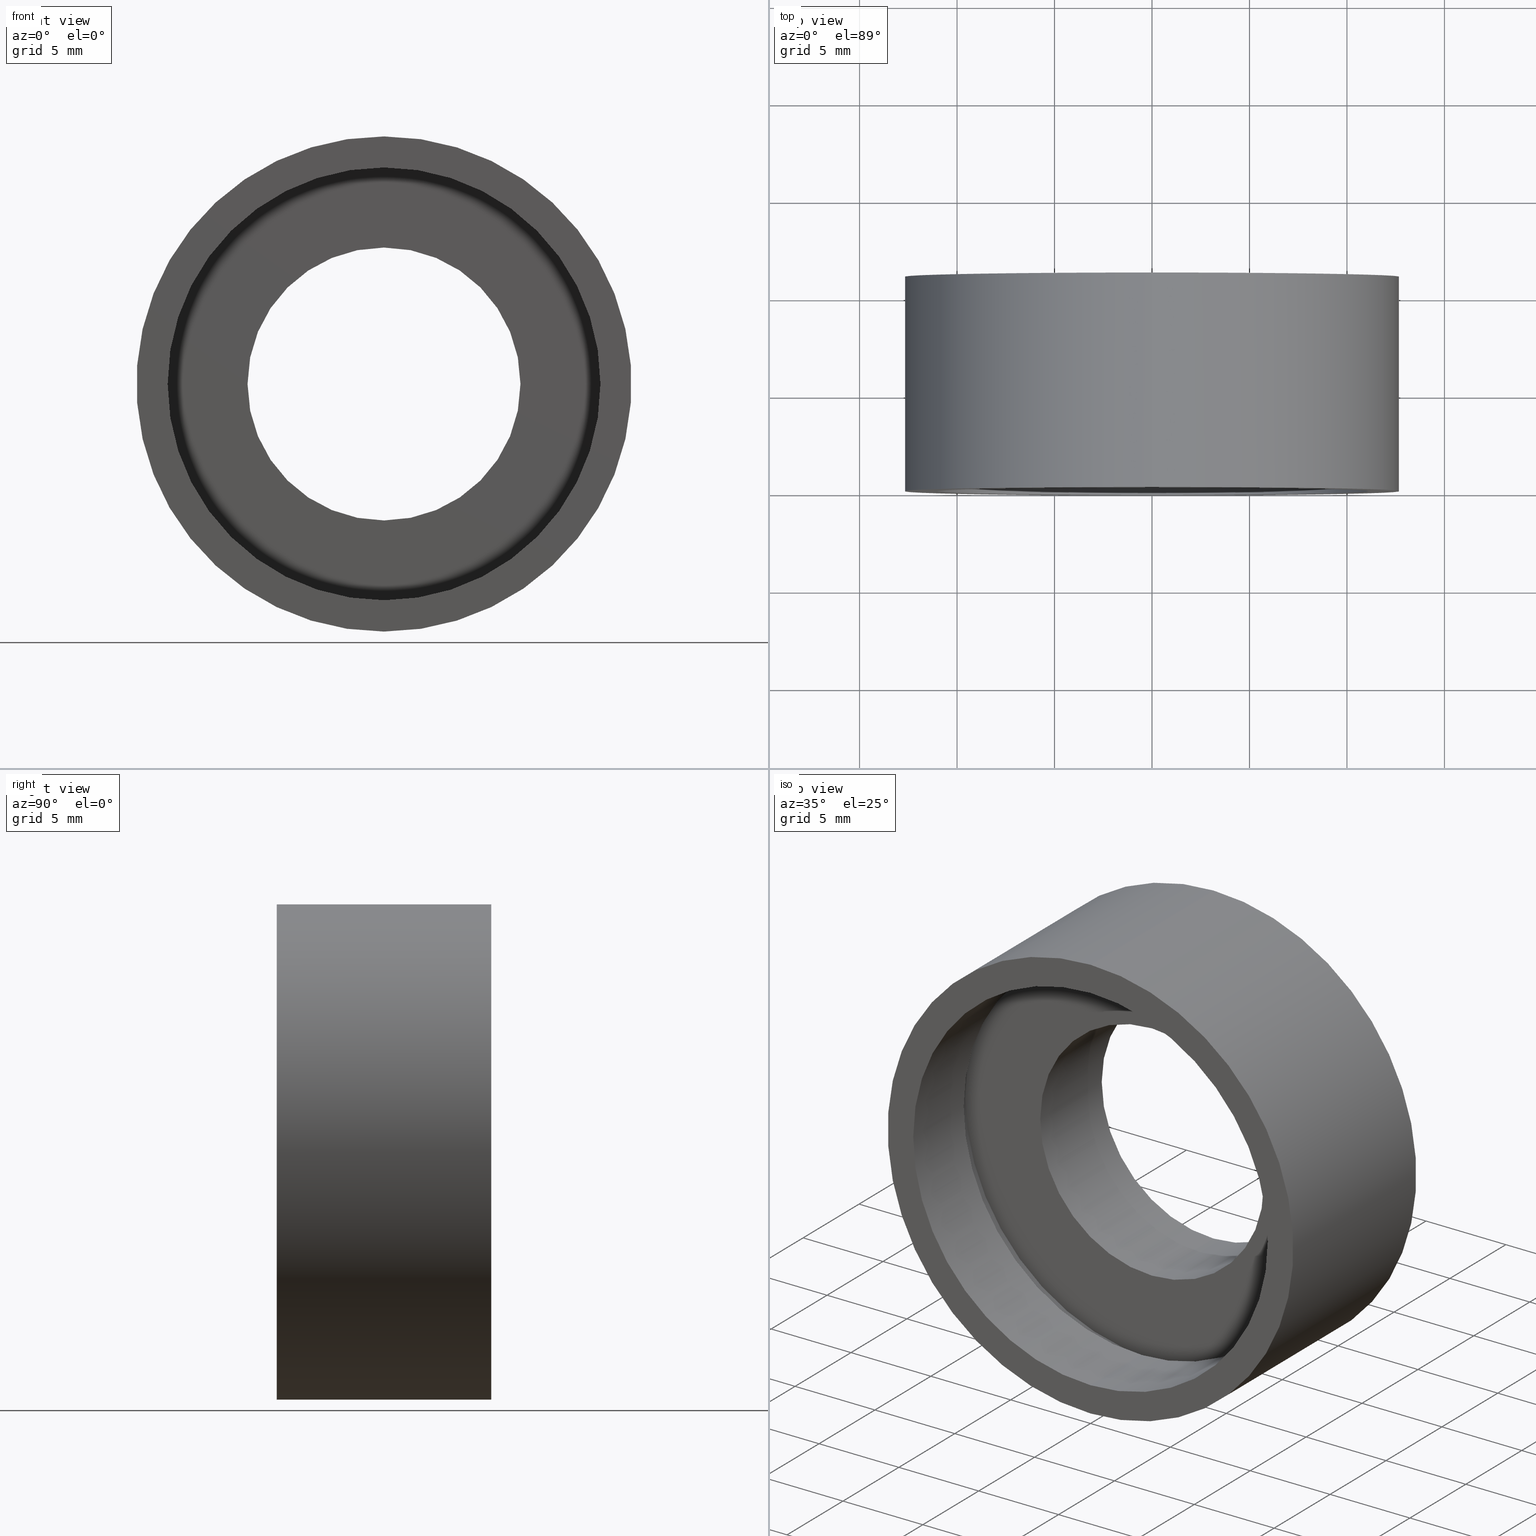
[diagram: canonical four-view strip — front | top / right | iso, engineering-drawing reading convention]
A machine part, canonical four-view strip (front | top / right | iso — engineering-drawing reading convention). The complete STEP part file that produces these views, byte-faithful:
ISO-10303-21;
HEADER;
FILE_DESCRIPTION (( 'STEP AP214' ),
    '1' );
FILE_NAME ('504089.STEP',
    '2019-10-09T08:49:36',
    ( 'user' ),
    ( '΢���й�' ),
    'SwSTEP 2.0',
    'SolidWorks 2016',
    '' );
FILE_SCHEMA (( 'AUTOMOTIVE_DESIGN' ));
ENDSEC;

DATA;
#1 = UNCERTAINTY_MEASURE_WITH_UNIT (LENGTH_MEASURE( 1.000000000000000100E-005 ), #239, 'distance_accuracy_value', 'NONE');
#2 = VERTEX_POINT ( 'NONE', #25 ) ;
#3 = LINE ( 'NONE', #346, #414 ) ;
#4 = APPLICATION_CONTEXT ( 'automotive_design' ) ;
#5 = EDGE_CURVE ( 'NONE', #13, #236, #168, .T. ) ;
#6 = CIRCLE ( 'NONE', #324, 12.70000000000000500 ) ;
#7 = UNCERTAINTY_MEASURE_WITH_UNIT (LENGTH_MEASURE( 1.000000000000000100E-005 ), #108, 'distance_accuracy_value', 'NONE');
#8 = EDGE_CURVE ( 'NONE', #358, #2, #222, .T. ) ;
#9 = DIRECTION ( 'NONE',  ( -0.0000000000000000000, 1.000000000000000000, -0.0000000000000000000 ) ) ;
#10 = DIRECTION ( 'NONE',  ( -0.0000000000000000000, 1.000000000000000000, -0.0000000000000000000 ) ) ;
#11 = ORIENTED_EDGE ( 'NONE', *, *, #432, .T. ) ;
#12 = MECHANICAL_DESIGN_GEOMETRIC_PRESENTATION_REPRESENTATION (  '', ( #75 ), #112 ) ;
#13 = VERTEX_POINT ( 'NONE', #104 ) ;
#14 = EDGE_CURVE ( 'NONE', #360, #171, #400, .T. ) ;
#15 = APPLICATION_CONTEXT ( 'automotive_design' ) ;
#16 = CARTESIAN_POINT ( 'NONE',  ( 0.0000000000000000000, 60.02082041425541100, 0.0000000000000000000 ) ) ;
#17 = DIRECTION ( 'NONE',  ( -0.0000000000000000000, 1.000000000000000000, -0.0000000000000000000 ) ) ;
#18 = AXIS2_PLACEMENT_3D ( 'NONE', #87, #167, #53 ) ;
#19 = PRESENTATION_STYLE_ASSIGNMENT (( #180 ) ) ;
#20 = CARTESIAN_POINT ( 'NONE',  ( 1.359357947053563100E-015, 4.499999999999997300, -11.10000000000000700 ) ) ;
#21 = SURFACE_STYLE_USAGE ( .BOTH. , #42 ) ;
#22 = AXIS2_PLACEMENT_3D ( 'NONE', #399, #17, #184 ) ;
#23 = DIRECTION ( 'NONE',  ( -0.0000000000000000000, 1.000000000000000000, -0.0000000000000000000 ) ) ;
#24 = ORIENTED_EDGE ( 'NONE', *, *, #341, .T. ) ;
#25 = CARTESIAN_POINT ( 'NONE',  ( 0.0000000000000000000, 4.499999999999997300, 11.70000000000000600 ) ) ;
#26 = DIRECTION ( 'NONE',  ( -0.0000000000000000000, 1.000000000000000000, -0.0000000000000000000 ) ) ;
#27 = PRESENTATION_LAYER_ASSIGNMENT (  '', '', ( #124 ) ) ;
#28 =( LENGTH_UNIT ( ) NAMED_UNIT ( * ) SI_UNIT ( .MILLI., .METRE. ) );
#29 = CARTESIAN_POINT ( 'NONE',  ( 0.0000000000000000000, 60.02082041425541100, 11.10000000000000700 ) ) ;
#30 = DIRECTION ( 'NONE',  ( -0.0000000000000000000, 1.000000000000000000, -0.0000000000000000000 ) ) ;
#31 = AXIS2_PLACEMENT_3D ( 'NONE', #310, #313, #375 ) ;
#32 = DIRECTION ( 'NONE',  ( -0.0000000000000000000, 1.000000000000000000, -0.0000000000000000000 ) ) ;
#33 = PRESENTATION_LAYER_ASSIGNMENT (  '', '', ( #75 ) ) ;
#34 = ORIENTED_EDGE ( 'NONE', *, *, #102, .T. ) ;
#35 = ORIENTED_EDGE ( 'NONE', *, *, #141, .T. ) ;
#36 = CARTESIAN_POINT ( 'NONE',  ( 0.0000000000000000000, 60.02082041425541100, 12.70000000000000600 ) ) ;
#37 = AXIS2_PLACEMENT_3D ( 'NONE', #312, #187, #252 ) ;
#38 = CARTESIAN_POINT ( 'NONE',  ( 0.0000000000000000000, 10.99999999999999600, 0.0000000000000000000 ) ) ;
#39 = ORIENTED_EDGE ( 'NONE', *, *, #197, .T. ) ;
#40 = VERTEX_POINT ( 'NONE', #328 ) ;
#41 = CARTESIAN_POINT ( 'NONE',  ( 0.0000000000000000000, 4.499999999999997300, 0.0000000000000000000 ) ) ;
#42 = SURFACE_SIDE_STYLE ('',( #174 ) ) ;
#43 = ORIENTED_EDGE ( 'NONE', *, *, #14, .F. ) ;
#44 = DIRECTION ( 'NONE',  ( -0.0000000000000000000, 1.000000000000000000, -0.0000000000000000000 ) ) ;
#45 = DIRECTION ( 'NONE',  ( 0.0000000000000000000, 0.0000000000000000000, 1.000000000000000000 ) ) ;
#46 = FILL_AREA_STYLE ('',( #269 ) ) ;
#47 = CARTESIAN_POINT ( 'NONE',  ( 0.0000000000000000000, 60.02082041425541100, 11.70000000000000600 ) ) ;
#48 =( NAMED_UNIT ( * ) SI_UNIT ( $, .STERADIAN. ) SOLID_ANGLE_UNIT ( ) );
#49 = ORIENTED_EDGE ( 'NONE', *, *, #217, .T. ) ;
#50 = DIRECTION ( 'NONE',  ( -0.0000000000000000000, 1.000000000000000000, -0.0000000000000000000 ) ) ;
#51 = FACE_OUTER_BOUND ( 'NONE', #158, .T. ) ;
#52 = ORIENTED_EDGE ( 'NONE', *, *, #77, .F. ) ;
#53 = DIRECTION ( 'NONE',  ( 0.0000000000000000000, 0.0000000000000000000, 1.000000000000000000 ) ) ;
#54 = AXIS2_PLACEMENT_3D ( 'NONE', #84, #44, #404 ) ;
#55 = CYLINDRICAL_SURFACE ( 'NONE', #330, 11.70000000000000600 ) ;
#56 = SURFACE_STYLE_USAGE ( .BOTH. , #280 ) ;
#57 =( NAMED_UNIT ( * ) PLANE_ANGLE_UNIT ( ) SI_UNIT ( $, .RADIAN. ) );
#58 = ADVANCED_FACE ( 'NONE', ( #332 ), #159, .F. ) ;
#59 = APPLICATION_PROTOCOL_DEFINITION ( 'draft international standard', 'automotive_design', 1998, #15 ) ;
#60 = ORIENTED_EDGE ( 'NONE', *, *, #419, .F. ) ;
#61 = VERTEX_POINT ( 'NONE', #230 ) ;
#62 = ORIENTED_EDGE ( 'NONE', *, *, #233, .F. ) ;
#63 = LINE ( 'NONE', #386, #281 ) ;
#64 = STYLED_ITEM ( 'NONE', ( #19 ), #339 ) ;
#65 = EDGE_LOOP ( 'NONE', ( #11, #111 ) ) ;
#66 =( LENGTH_UNIT ( ) NAMED_UNIT ( * ) SI_UNIT ( .MILLI., .METRE. ) );
#67 = DIRECTION ( 'NONE',  ( -0.0000000000000000000, 1.000000000000000000, -0.0000000000000000000 ) ) ;
#68 = EDGE_CURVE ( 'NONE', #139, #249, #265, .T. ) ;
#69 = VERTEX_POINT ( 'NONE', #119 ) ;
#70 = VERTEX_POINT ( 'NONE', #101 ) ;
#71 = CIRCLE ( 'NONE', #97, 11.10000000000000700 ) ;
#72 = ORIENTED_EDGE ( 'NONE', *, *, #141, .F. ) ;
#73 = ADVANCED_FACE ( 'NONE', ( #189 ), #55, .F. ) ;
#74 = DIRECTION ( 'NONE',  ( -0.0000000000000000000, 1.000000000000000000, -0.0000000000000000000 ) ) ;
#75 = STYLED_ITEM ( 'NONE', ( #220 ), #289 ) ;
#76 =( NAMED_UNIT ( * ) SI_UNIT ( $, .STERADIAN. ) SOLID_ANGLE_UNIT ( ) );
#77 = EDGE_CURVE ( 'NONE', #360, #279, #3, .T. ) ;
#78 = ORIENTED_EDGE ( 'NONE', *, *, #347, .T. ) ;
#79 = CARTESIAN_POINT ( 'NONE',  ( 0.0000000000000000000, 4.499999999999997300, 11.10000000000000700 ) ) ;
#80 = CARTESIAN_POINT ( 'NONE',  ( 12.70000000000000600, -2.923844232964301500E-016, 0.0000000000000000000 ) ) ;
#81 = SHAPE_DEFINITION_REPRESENTATION ( #243, #390 ) ;
#82 = FILL_AREA_STYLE ('',( #245 ) ) ;
#83 = EDGE_LOOP ( 'NONE', ( #349, #152, #34, #49 ) ) ;
#84 = CARTESIAN_POINT ( 'NONE',  ( 0.0000000000000000000, 10.99999999999999600, 0.0000000000000000000 ) ) ;
#85 = MECHANICAL_DESIGN_GEOMETRIC_PRESENTATION_REPRESENTATION (  '', ( #300 ), #320 ) ;
#86 =( NAMED_UNIT ( * ) PLANE_ANGLE_UNIT ( ) SI_UNIT ( $, .RADIAN. ) );
#87 = CARTESIAN_POINT ( 'NONE',  ( 0.0000000000000000000, 10.99999999999999600, 0.0000000000000000000 ) ) ;
#88 =( GEOMETRIC_REPRESENTATION_CONTEXT ( 3 ) GLOBAL_UNCERTAINTY_ASSIGNED_CONTEXT ( ( #143 ) ) GLOBAL_UNIT_ASSIGNED_CONTEXT ( ( #162, #86, #359 ) ) REPRESENTATION_CONTEXT ( 'NONE', 'WORKASPACE' ) );
#89 = CARTESIAN_POINT ( 'NONE',  ( 0.0000000000000000000, 60.02082041425541100, 0.0000000000000000000 ) ) ;
#90 = EDGE_LOOP ( 'NONE', ( #421, #434 ) ) ;
#91 = CYLINDRICAL_SURFACE ( 'NONE', #317, 11.70000000000000600 ) ;
#92 = AXIS2_PLACEMENT_3D ( 'NONE', #98, #296, #246 ) ;
#93 = PLANE ( 'NONE',  #381 ) ;
#94 = VECTOR ( 'NONE', #298, 1000.000000000000000 ) ;
#95 = CARTESIAN_POINT ( 'NONE',  ( 0.0000000000000000000, 0.0000000000000000000, 11.10000000000000700 ) ) ;
#96 = VERTEX_POINT ( 'NONE', #79 ) ;
#97 = AXIS2_PLACEMENT_3D ( 'NONE', #299, #32, #235 ) ;
#98 = CARTESIAN_POINT ( 'NONE',  ( 0.0000000000000000000, 0.0000000000000000000, 0.0000000000000000000 ) ) ;
#99 = COLOUR_RGB ( '',1.000000000000000000, 1.000000000000000000, 1.000000000000000000 ) ;
#100 = ORIENTED_EDGE ( 'NONE', *, *, #402, .T. ) ;
#101 = CARTESIAN_POINT ( 'NONE',  ( 0.0000000000000000000, 10.99999999999999600, 12.70000000000000500 ) ) ;
#102 = EDGE_CURVE ( 'NONE', #40, #69, #151, .T. ) ;
#103 = FACE_BOUND ( 'NONE', #431, .T. ) ;
#104 = CARTESIAN_POINT ( 'NONE',  ( 0.0000000000000000000, 0.0000000000000000000, 12.70000000000000600 ) ) ;
#105 = DIRECTION ( 'NONE',  ( 0.0000000000000000000, 0.0000000000000000000, 1.000000000000000000 ) ) ;
#106 = DIRECTION ( 'NONE',  ( -0.0000000000000000000, 1.000000000000000000, -0.0000000000000000000 ) ) ;
#107 = DIRECTION ( 'NONE',  ( -0.0000000000000000000, 1.000000000000000000, -0.0000000000000000000 ) ) ;
#108 =( LENGTH_UNIT ( ) NAMED_UNIT ( * ) SI_UNIT ( .MILLI., .METRE. ) );
#109 = UNCERTAINTY_MEASURE_WITH_UNIT (LENGTH_MEASURE( 1.000000000000000100E-005 ), #200, 'distance_accuracy_value', 'NONE');
#110 = DIRECTION ( 'NONE',  ( 0.0000000000000000000, 0.0000000000000000000, 1.000000000000000000 ) ) ;
#111 = ORIENTED_EDGE ( 'NONE', *, *, #8, .T. ) ;
#112 =( GEOMETRIC_REPRESENTATION_CONTEXT ( 3 ) GLOBAL_UNCERTAINTY_ASSIGNED_CONTEXT ( ( #277 ) ) GLOBAL_UNIT_ASSIGNED_CONTEXT ( ( #66, #290, #226 ) ) REPRESENTATION_CONTEXT ( 'NONE', 'WORKASPACE' ) );
#113 = CARTESIAN_POINT ( 'NONE',  ( 8.572527594031482100E-016, 10.99999999999999600, -7.000000000000008000 ) ) ;
#114 = DIRECTION ( 'NONE',  ( 0.0000000000000000000, 0.0000000000000000000, 1.000000000000000000 ) ) ;
#115 = AXIS2_PLACEMENT_3D ( 'NONE', #351, #426, #155 ) ;
#116 = ORIENTED_EDGE ( 'NONE', *, *, #5, .F. ) ;
#117 = VECTOR ( 'NONE', #416, 1000.000000000000000 ) ;
#118 = CIRCLE ( 'NONE', #115, 11.70000000000000600 ) ;
#119 = CARTESIAN_POINT ( 'NONE',  ( 0.0000000000000000000, 10.99999999999999600, 7.000000000000007100 ) ) ;
#120 = AXIS2_PLACEMENT_3D ( 'NONE', #80, #254, #218 ) ;
#121 = CLOSED_SHELL ( 'NONE', ( #191, #251, #73, #339, #182, #58, #427, #227, #412, #286, #244, #385 ) ) ;
#122 = DIRECTION ( 'NONE',  ( -0.0000000000000000000, 1.000000000000000000, -0.0000000000000000000 ) ) ;
#123 = DIRECTION ( 'NONE',  ( -0.0000000000000000000, 1.000000000000000000, -0.0000000000000000000 ) ) ;
#124 = STYLED_ITEM ( 'NONE', ( #266 ), #251 ) ;
#125 = ORIENTED_EDGE ( 'NONE', *, *, #302, .F. ) ;
#126 = EDGE_LOOP ( 'NONE', ( #425, #24, #144, #268 ) ) ;
#127 = PRESENTATION_STYLE_ASSIGNMENT (( #340 ) ) ;
#128 = ORIENTED_EDGE ( 'NONE', *, *, #154, .T. ) ;
#129 = CARTESIAN_POINT ( 'NONE',  ( 11.10000000000000700, 4.500000000000000000, 0.0000000000000000000 ) ) ;
#130 =( NAMED_UNIT ( * ) PLANE_ANGLE_UNIT ( ) SI_UNIT ( $, .RADIAN. ) );
#131 = SURFACE_SIDE_STYLE ('',( #327 ) ) ;
#132 = FACE_OUTER_BOUND ( 'NONE', #198, .T. ) ;
#133 = DIRECTION ( 'NONE',  ( -0.0000000000000000000, 1.000000000000000000, -0.0000000000000000000 ) ) ;
#134 = DIRECTION ( 'NONE',  ( 0.0000000000000000000, -1.000000000000000000, 0.0000000000000000000 ) ) ;
#135 = SURFACE_STYLE_FILL_AREA ( #82 ) ;
#136 = FILL_AREA_STYLE ('',( #264 ) ) ;
#137 = ORIENTED_EDGE ( 'NONE', *, *, #242, .T. ) ;
#138 = MECHANICAL_DESIGN_GEOMETRIC_PRESENTATION_REPRESENTATION (  '', ( #64 ), #206 ) ;
#139 = VERTEX_POINT ( 'NONE', #221 ) ;
#140 = CARTESIAN_POINT ( 'NONE',  ( 0.0000000000000000000, 5.499999999999998200, 0.0000000000000000000 ) ) ;
#141 = EDGE_CURVE ( 'NONE', #407, #69, #156, .T. ) ;
#142 = FACE_BOUND ( 'NONE', #173, .T. ) ;
#143 = UNCERTAINTY_MEASURE_WITH_UNIT (LENGTH_MEASURE( 1.000000000000000100E-005 ), #162, 'distance_accuracy_value', 'NONE');
#144 = ORIENTED_EDGE ( 'NONE', *, *, #270, .T. ) ;
#145 = CIRCLE ( 'NONE', #368, 7.000000000000006200 ) ;
#146 = SURFACE_SIDE_STYLE ('',( #323 ) ) ;
#147 = FILL_AREA_STYLE_COLOUR ( '', #99 ) ;
#148 = CARTESIAN_POINT ( 'NONE',  ( 0.0000000000000000000, 60.02082041425541100, 7.000000000000006200 ) ) ;
#149 = CARTESIAN_POINT ( 'NONE',  ( 11.70000000000000600, 5.499999999999999100, 0.0000000000000000000 ) ) ;
#150 = CYLINDRICAL_SURFACE ( 'NONE', #166, 7.000000000000006200 ) ;
#151 = LINE ( 'NONE', #148, #117 ) ;
#152 = ORIENTED_EDGE ( 'NONE', *, *, #197, .F. ) ;
#153 = DIRECTION ( 'NONE',  ( 0.0000000000000000000, 0.0000000000000000000, 1.000000000000000000 ) ) ;
#154 = EDGE_CURVE ( 'NONE', #61, #70, #6, .T. ) ;
#155 = DIRECTION ( 'NONE',  ( 0.0000000000000000000, 0.0000000000000000000, 1.000000000000000000 ) ) ;
#156 = CIRCLE ( 'NONE', #207, 7.000000000000007100 ) ;
#157 = SURFACE_SIDE_STYLE ('',( #135 ) ) ;
#158 = EDGE_LOOP ( 'NONE', ( #43, #192, #78, #287 ) ) ;
#159 = CYLINDRICAL_SURFACE ( 'NONE', #225, 11.10000000000000700 ) ;
#160 = PRESENTATION_STYLE_ASSIGNMENT (( #393 ) ) ;
#161 = CIRCLE ( 'NONE', #352, 11.10000000000000700 ) ;
#162 =( LENGTH_UNIT ( ) NAMED_UNIT ( * ) SI_UNIT ( .MILLI., .METRE. ) );
#163 = CIRCLE ( 'NONE', #18, 7.000000000000007100 ) ;
#164 =( NAMED_UNIT ( * ) SI_UNIT ( $, .STERADIAN. ) SOLID_ANGLE_UNIT ( ) );
#165 = DIRECTION ( 'NONE',  ( -0.0000000000000000000, 1.000000000000000000, -0.0000000000000000000 ) ) ;
#166 = AXIS2_PLACEMENT_3D ( 'NONE', #362, #250, #329 ) ;
#167 = DIRECTION ( 'NONE',  ( -0.0000000000000000000, 1.000000000000000000, -0.0000000000000000000 ) ) ;
#168 = CIRCLE ( 'NONE', #356, 12.70000000000000600 ) ;
#169 = DIRECTION ( 'NONE',  ( -0.0000000000000000000, 1.000000000000000000, -0.0000000000000000000 ) ) ;
#170 = DIRECTION ( 'NONE',  ( 0.0000000000000000000, 0.0000000000000000000, 1.000000000000000000 ) ) ;
#171 = VERTEX_POINT ( 'NONE', #95 ) ;
#172 = FACE_OUTER_BOUND ( 'NONE', #424, .T. ) ;
#173 = EDGE_LOOP ( 'NONE', ( #201, #321 ) ) ;
#174 = SURFACE_STYLE_FILL_AREA ( #334 ) ;
#175 = SURFACE_STYLE_FILL_AREA ( #136 ) ;
#176 = ORIENTED_EDGE ( 'NONE', *, *, #432, .F. ) ;
#177 = AXIS2_PLACEMENT_3D ( 'NONE', #89, #122, #110 ) ;
#178 = DIRECTION ( 'NONE',  ( -0.0000000000000000000, 1.000000000000000000, -0.0000000000000000000 ) ) ;
#179 = PRESENTATION_LAYER_ASSIGNMENT (  '', '', ( #300 ) ) ;
#180 = SURFACE_STYLE_USAGE ( .BOTH. , #131 ) ;
#181 = DIRECTION ( 'NONE',  ( 0.0000000000000000000, 0.0000000000000000000, 1.000000000000000000 ) ) ;
#182 = ADVANCED_FACE ( 'NONE', ( #212, #229 ), #303, .F. ) ;
#183 = ORIENTED_EDGE ( 'NONE', *, *, #8, .F. ) ;
#184 = DIRECTION ( 'NONE',  ( 0.0000000000000000000, 0.0000000000000000000, 1.000000000000000000 ) ) ;
#185 =( GEOMETRIC_REPRESENTATION_CONTEXT ( 3 ) GLOBAL_UNCERTAINTY_ASSIGNED_CONTEXT ( ( #7 ) ) GLOBAL_UNIT_ASSIGNED_CONTEXT ( ( #108, #213, #76 ) ) REPRESENTATION_CONTEXT ( 'NONE', 'WORKASPACE' ) );
#186 = UNCERTAINTY_MEASURE_WITH_UNIT (LENGTH_MEASURE( 1.000000000000000100E-005 ), #28, 'distance_accuracy_value', 'NONE');
#187 = DIRECTION ( 'NONE',  ( -0.0000000000000000000, 1.000000000000000000, -0.0000000000000000000 ) ) ;
#188 = MECHANICAL_DESIGN_GEOMETRIC_PRESENTATION_REPRESENTATION (  '', ( #124 ), #371 ) ;
#189 = FACE_OUTER_BOUND ( 'NONE', #370, .T. ) ;
#190 = DIRECTION ( 'NONE',  ( 0.0000000000000000000, 0.0000000000000000000, 1.000000000000000000 ) ) ;
#191 = ADVANCED_FACE ( 'NONE', ( #210 ), #315, .T. ) ;
#192 = ORIENTED_EDGE ( 'NONE', *, *, #77, .T. ) ;
#193 = ORIENTED_EDGE ( 'NONE', *, *, #383, .T. ) ;
#194 = ORIENTED_EDGE ( 'NONE', *, *, #377, .T. ) ;
#195 = CARTESIAN_POINT ( 'NONE',  ( 1.359357947053563100E-015, 0.0000000000000000000, -11.10000000000000700 ) ) ;
#196 = CARTESIAN_POINT ( 'NONE',  ( 0.0000000000000000000, 4.499999999999997300, 0.0000000000000000000 ) ) ;
#197 = EDGE_CURVE ( 'NONE', #40, #219, #145, .T. ) ;
#198 = EDGE_LOOP ( 'NONE', ( #193, #128 ) ) ;
#199 = COLOUR_RGB ( '',1.000000000000000000, 1.000000000000000000, 1.000000000000000000 ) ;
#200 =( LENGTH_UNIT ( ) NAMED_UNIT ( * ) SI_UNIT ( .MILLI., .METRE. ) );
#201 = ORIENTED_EDGE ( 'NONE', *, *, #311, .F. ) ;
#202 = APPLICATION_PROTOCOL_DEFINITION ( 'draft international standard', 'automotive_design', 1998, #4 ) ;
#203 = AXIS2_PLACEMENT_3D ( 'NONE', #16, #405, #114 ) ;
#204 = DIRECTION ( 'NONE',  ( 0.0000000000000000000, 0.0000000000000000000, 1.000000000000000000 ) ) ;
#205 = CYLINDRICAL_SURFACE ( 'NONE', #415, 7.000000000000006200 ) ;
#206 =( GEOMETRIC_REPRESENTATION_CONTEXT ( 3 ) GLOBAL_UNCERTAINTY_ASSIGNED_CONTEXT ( ( #186 ) ) GLOBAL_UNIT_ASSIGNED_CONTEXT ( ( #28, #130, #257 ) ) REPRESENTATION_CONTEXT ( 'NONE', 'WORKASPACE' ) );
#207 = AXIS2_PLACEMENT_3D ( 'NONE', #384, #389, #365 ) ;
#208 = DIRECTION ( 'NONE',  ( 0.0000000000000000000, 0.0000000000000000000, 1.000000000000000000 ) ) ;
#209 = PRODUCT_RELATED_PRODUCT_CATEGORY ( 'part', '', ( #350 ) ) ;
#210 = FACE_OUTER_BOUND ( 'NONE', #397, .T. ) ;
#211 = ORIENTED_EDGE ( 'NONE', *, *, #275, .T. ) ;
#212 = FACE_OUTER_BOUND ( 'NONE', #216, .T. ) ;
#213 =( NAMED_UNIT ( * ) PLANE_ANGLE_UNIT ( ) SI_UNIT ( $, .RADIAN. ) );
#214 = AXIS2_PLACEMENT_3D ( 'NONE', #140, #267, #204 ) ;
#215 = VECTOR ( 'NONE', #9, 1000.000000000000000 ) ;
#216 = EDGE_LOOP ( 'NONE', ( #116, #343 ) ) ;
#217 = EDGE_CURVE ( 'NONE', #69, #407, #163, .T. ) ;
#218 = DIRECTION ( 'NONE',  ( 0.0000000000000000000, 0.0000000000000000000, 1.000000000000000000 ) ) ;
#219 = VERTEX_POINT ( 'NONE', #369 ) ;
#220 = PRESENTATION_STYLE_ASSIGNMENT (( #382 ) ) ;
#221 = CARTESIAN_POINT ( 'NONE',  ( 1.432836755002403900E-015, 5.499999999999998200, -11.70000000000000600 ) ) ;
#222 = CIRCLE ( 'NONE', #336, 11.70000000000000600 ) ;
#223 = CARTESIAN_POINT ( 'NONE',  ( 0.0000000000000000000, 5.499999999999998200, 0.0000000000000000000 ) ) ;
#224 = CARTESIAN_POINT ( 'NONE',  ( 8.572527594031480100E-016, 60.02082041425541100, -7.000000000000006200 ) ) ;
#225 = AXIS2_PLACEMENT_3D ( 'NONE', #237, #74, #181 ) ;
#226 =( NAMED_UNIT ( * ) SI_UNIT ( $, .STERADIAN. ) SOLID_ANGLE_UNIT ( ) );
#227 = ADVANCED_FACE ( 'NONE', ( #172 ), #91, .F. ) ;
#228 = CARTESIAN_POINT ( 'NONE',  ( 0.0000000000000000000, 4.499999999999997300, 0.0000000000000000000 ) ) ;
#229 = FACE_BOUND ( 'NONE', #90, .T. ) ;
#230 = CARTESIAN_POINT ( 'NONE',  ( 1.555301434917139000E-015, 10.99999999999999600, -12.70000000000000500 ) ) ;
#231 = DIRECTION ( 'NONE',  ( 0.0000000000000000000, 0.0000000000000000000, 1.000000000000000000 ) ) ;
#232 = AXIS2_PLACEMENT_3D ( 'NONE', #41, #429, #190 ) ;
#233 = EDGE_CURVE ( 'NONE', #171, #360, #71, .T. ) ;
#234 = MECHANICAL_DESIGN_GEOMETRIC_PRESENTATION_REPRESENTATION (  '', ( #259 ), #345 ) ;
#235 = DIRECTION ( 'NONE',  ( 0.0000000000000000000, 0.0000000000000000000, 1.000000000000000000 ) ) ;
#236 = VERTEX_POINT ( 'NONE', #253 ) ;
#237 = CARTESIAN_POINT ( 'NONE',  ( 0.0000000000000000000, 60.02082041425541100, 0.0000000000000000000 ) ) ;
#238 = CARTESIAN_POINT ( 'NONE',  ( 0.0000000000000000000, 60.02082041425541100, 0.0000000000000000000 ) ) ;
#239 =( LENGTH_UNIT ( ) NAMED_UNIT ( * ) SI_UNIT ( .MILLI., .METRE. ) );
#240 = DIRECTION ( 'NONE',  ( -0.0000000000000000000, 1.000000000000000000, 0.0000000000000000000 ) ) ;
#241 = FACE_OUTER_BOUND ( 'NONE', #248, .T. ) ;
#242 = EDGE_CURVE ( 'NONE', #358, #139, #306, .T. ) ;
#243 = PRODUCT_DEFINITION_SHAPE ( 'NONE', 'NONE',  #263 ) ;
#244 = ADVANCED_FACE ( 'NONE', ( #103, #132 ), #388, .F. ) ;
#245 = FILL_AREA_STYLE_COLOUR ( '', #294 ) ;
#246 = DIRECTION ( 'NONE',  ( 1.000000000000000000, 0.0000000000000000000, 0.0000000000000000000 ) ) ;
#247 = ORIENTED_EDGE ( 'NONE', *, *, #68, .F. ) ;
#248 = EDGE_LOOP ( 'NONE', ( #60, #100, #35, #366 ) ) ;
#249 = VERTEX_POINT ( 'NONE', #387 ) ;
#250 = DIRECTION ( 'NONE',  ( -0.0000000000000000000, 1.000000000000000000, -0.0000000000000000000 ) ) ;
#251 = ADVANCED_FACE ( 'NONE', ( #241 ), #205, .F. ) ;
#252 = DIRECTION ( 'NONE',  ( 0.0000000000000000000, 0.0000000000000000000, 1.000000000000000000 ) ) ;
#253 = CARTESIAN_POINT ( 'NONE',  ( 1.555301434917139200E-015, 0.0000000000000000000, -12.70000000000000600 ) ) ;
#254 = DIRECTION ( 'NONE',  ( -0.0000000000000000000, 1.000000000000000000, 0.0000000000000000000 ) ) ;
#255 = FACE_BOUND ( 'NONE', #338, .T. ) ;
#256 = PRODUCT_CONTEXT ( 'NONE', #4, 'mechanical' ) ;
#257 =( NAMED_UNIT ( * ) SI_UNIT ( $, .STERADIAN. ) SOLID_ANGLE_UNIT ( ) );
#258 = ORIENTED_EDGE ( 'NONE', *, *, #419, .T. ) ;
#259 = STYLED_ITEM ( 'NONE', ( #160 ), #390 ) ;
#260 = LINE ( 'NONE', #47, #423 ) ;
#261 = STYLED_ITEM ( 'NONE', ( #127 ), #286 ) ;
#262 = DIRECTION ( 'NONE',  ( 0.0000000000000000000, -0.0000000000000000000, -1.000000000000000000 ) ) ;
#263 = PRODUCT_DEFINITION ( 'δ֪', '', #314, #325 ) ;
#264 = FILL_AREA_STYLE_COLOUR ( '', #409 ) ;
#265 = CIRCLE ( 'NONE', #214, 11.70000000000000600 ) ;
#266 = PRESENTATION_STYLE_ASSIGNMENT (( #21 ) ) ;
#267 = DIRECTION ( 'NONE',  ( -0.0000000000000000000, 1.000000000000000000, -0.0000000000000000000 ) ) ;
#268 = ORIENTED_EDGE ( 'NONE', *, *, #154, .F. ) ;
#269 = FILL_AREA_STYLE_COLOUR ( '', #406 ) ;
#270 = EDGE_CURVE ( 'NONE', #13, #70, #355, .T. ) ;
#271 = AXIS2_PLACEMENT_3D ( 'NONE', #149, #240, #105 ) ;
#272 = UNCERTAINTY_MEASURE_WITH_UNIT (LENGTH_MEASURE( 1.000000000000000100E-005 ), #396, 'distance_accuracy_value', 'NONE');
#273 = ORIENTED_EDGE ( 'NONE', *, *, #383, .F. ) ;
#274 = FACE_OUTER_BOUND ( 'NONE', #395, .T. ) ;
#275 = EDGE_CURVE ( 'NONE', #236, #61, #63, .T. ) ;
#276 = LINE ( 'NONE', #224, #284 ) ;
#277 = UNCERTAINTY_MEASURE_WITH_UNIT (LENGTH_MEASURE( 1.000000000000000100E-005 ), #66, 'distance_accuracy_value', 'NONE');
#278 = ORIENTED_EDGE ( 'NONE', *, *, #285, .T. ) ;
#279 = VERTEX_POINT ( 'NONE', #20 ) ;
#280 = SURFACE_SIDE_STYLE ('',( #367 ) ) ;
#281 = VECTOR ( 'NONE', #344, 1000.000000000000000 ) ;
#282 = CYLINDRICAL_SURFACE ( 'NONE', #203, 12.70000000000000600 ) ;
#283 = CIRCLE ( 'NONE', #305, 7.000000000000006200 ) ;
#284 = VECTOR ( 'NONE', #30, 1000.000000000000000 ) ;
#285 = EDGE_CURVE ( 'NONE', #249, #139, #118, .T. ) ;
#286 = ADVANCED_FACE ( 'NONE', ( #322 ), #150, .F. ) ;
#287 = ORIENTED_EDGE ( 'NONE', *, *, #377, .F. ) ;
#288 =( NAMED_UNIT ( * ) PLANE_ANGLE_UNIT ( ) SI_UNIT ( $, .RADIAN. ) );
#289 = MANIFOLD_SOLID_BREP ( '��ת1', #121 ) ;
#290 =( NAMED_UNIT ( * ) PLANE_ANGLE_UNIT ( ) SI_UNIT ( $, .RADIAN. ) );
#291 = ORIENTED_EDGE ( 'NONE', *, *, #5, .T. ) ;
#292 = FACE_OUTER_BOUND ( 'NONE', #126, .T. ) ;
#293 = CIRCLE ( 'NONE', #232, 11.10000000000000700 ) ;
#294 = COLOUR_RGB ( '',1.000000000000000000, 1.000000000000000000, 1.000000000000000000 ) ;
#295 = CIRCLE ( 'NONE', #22, 12.70000000000000600 ) ;
#296 = DIRECTION ( 'NONE',  ( 0.0000000000000000000, 0.0000000000000000000, 1.000000000000000000 ) ) ;
#297 = AXIS2_PLACEMENT_3D ( 'NONE', #417, #134, #262 ) ;
#298 = DIRECTION ( 'NONE',  ( -0.0000000000000000000, 1.000000000000000000, -0.0000000000000000000 ) ) ;
#299 = CARTESIAN_POINT ( 'NONE',  ( 0.0000000000000000000, 0.0000000000000000000, 0.0000000000000000000 ) ) ;
#300 = STYLED_ITEM ( 'NONE', ( #411 ), #58 ) ;
#301 = CYLINDRICAL_SURFACE ( 'NONE', #31, 11.10000000000000700 ) ;
#302 = EDGE_CURVE ( 'NONE', #2, #249, #260, .T. ) ;
#303 = PLANE ( 'NONE',  #120 ) ;
#304 = ORIENTED_EDGE ( 'NONE', *, *, #68, .T. ) ;
#305 = AXIS2_PLACEMENT_3D ( 'NONE', #353, #23, #316 ) ;
#306 = LINE ( 'NONE', #410, #215 ) ;
#307 = CIRCLE ( 'NONE', #54, 12.70000000000000500 ) ;
#308 = FILL_AREA_STYLE ('',( #378 ) ) ;
#309 = LINE ( 'NONE', #29, #318 ) ;
#310 = CARTESIAN_POINT ( 'NONE',  ( 0.0000000000000000000, 60.02082041425541100, 0.0000000000000000000 ) ) ;
#311 = EDGE_CURVE ( 'NONE', #96, #279, #161, .T. ) ;
#312 = CARTESIAN_POINT ( 'NONE',  ( 0.0000000000000000000, 0.0000000000000000000, 0.0000000000000000000 ) ) ;
#313 = DIRECTION ( 'NONE',  ( -0.0000000000000000000, 1.000000000000000000, -0.0000000000000000000 ) ) ;
#314 = PRODUCT_DEFINITION_FORMATION_WITH_SPECIFIED_SOURCE ( '�κ�', '', #350, .NOT_KNOWN. ) ;
#315 = CYLINDRICAL_SURFACE ( 'NONE', #177, 12.70000000000000600 ) ;
#316 = DIRECTION ( 'NONE',  ( 0.0000000000000000000, 0.0000000000000000000, 1.000000000000000000 ) ) ;
#317 = AXIS2_PLACEMENT_3D ( 'NONE', #238, #413, #153 ) ;
#318 = VECTOR ( 'NONE', #50, 1000.000000000000000 ) ;
#319 = PRESENTATION_LAYER_ASSIGNMENT (  '', '', ( #64 ) ) ;
#320 =( GEOMETRIC_REPRESENTATION_CONTEXT ( 3 ) GLOBAL_UNCERTAINTY_ASSIGNED_CONTEXT ( ( #109 ) ) GLOBAL_UNIT_ASSIGNED_CONTEXT ( ( #200, #288, #433 ) ) REPRESENTATION_CONTEXT ( 'NONE', 'WORKASPACE' ) );
#321 = ORIENTED_EDGE ( 'NONE', *, *, #347, .F. ) ;
#322 = FACE_OUTER_BOUND ( 'NONE', #83, .T. ) ;
#323 = SURFACE_STYLE_FILL_AREA ( #308 ) ;
#324 = AXIS2_PLACEMENT_3D ( 'NONE', #38, #107, #420 ) ;
#325 = PRODUCT_DEFINITION_CONTEXT ( 'detailed design', #15, 'design' ) ;
#326 = SURFACE_SIDE_STYLE ('',( #175 ) ) ;
#327 = SURFACE_STYLE_FILL_AREA ( #46 ) ;
#328 = CARTESIAN_POINT ( 'NONE',  ( 0.0000000000000000000, 5.499999999999998200, 7.000000000000006200 ) ) ;
#329 = DIRECTION ( 'NONE',  ( 0.0000000000000000000, 0.0000000000000000000, 1.000000000000000000 ) ) ;
#330 = AXIS2_PLACEMENT_3D ( 'NONE', #376, #123, #170 ) ;
#331 = ORIENTED_EDGE ( 'NONE', *, *, #302, .T. ) ;
#332 = FACE_OUTER_BOUND ( 'NONE', #380, .T. ) ;
#333 = DIRECTION ( 'NONE',  ( 0.0000000000000000000, 0.0000000000000000000, 1.000000000000000000 ) ) ;
#334 = FILL_AREA_STYLE ('',( #147 ) ) ;
#335 = CARTESIAN_POINT ( 'NONE',  ( 0.0000000000000000000, 60.02082041425541100, 0.0000000000000000000 ) ) ;
#336 = AXIS2_PLACEMENT_3D ( 'NONE', #196, #26, #208 ) ;
#337 = ORIENTED_EDGE ( 'NONE', *, *, #217, .F. ) ;
#338 = EDGE_LOOP ( 'NONE', ( #39, #258 ) ) ;
#339 = ADVANCED_FACE ( 'NONE', ( #51 ), #301, .F. ) ;
#340 = SURFACE_STYLE_USAGE ( .BOTH. , #146 ) ;
#341 = EDGE_CURVE ( 'NONE', #236, #13, #295, .T. ) ;
#342 =( NAMED_UNIT ( * ) PLANE_ANGLE_UNIT ( ) SI_UNIT ( $, .RADIAN. ) );
#343 = ORIENTED_EDGE ( 'NONE', *, *, #341, .F. ) ;
#344 = DIRECTION ( 'NONE',  ( -0.0000000000000000000, 1.000000000000000000, -0.0000000000000000000 ) ) ;
#345 =( GEOMETRIC_REPRESENTATION_CONTEXT ( 3 ) GLOBAL_UNCERTAINTY_ASSIGNED_CONTEXT ( ( #272 ) ) GLOBAL_UNIT_ASSIGNED_CONTEXT ( ( #396, #57, #48 ) ) REPRESENTATION_CONTEXT ( 'NONE', 'WORKASPACE' ) );
#346 = CARTESIAN_POINT ( 'NONE',  ( 1.359357947053563100E-015, 60.02082041425541100, -11.10000000000000700 ) ) ;
#347 = EDGE_CURVE ( 'NONE', #279, #96, #293, .T. ) ;
#348 = DIRECTION ( 'NONE',  ( 0.0000000000000000000, 0.0000000000000000000, 1.000000000000000000 ) ) ;
#349 = ORIENTED_EDGE ( 'NONE', *, *, #402, .F. ) ;
#350 = PRODUCT ( '504089', '504089', '', ( #256 ) ) ;
#351 = CARTESIAN_POINT ( 'NONE',  ( 0.0000000000000000000, 5.499999999999998200, 0.0000000000000000000 ) ) ;
#352 = AXIS2_PLACEMENT_3D ( 'NONE', #228, #106, #363 ) ;
#353 = CARTESIAN_POINT ( 'NONE',  ( 0.0000000000000000000, 5.499999999999998200, 0.0000000000000000000 ) ) ;
#354 = ORIENTED_EDGE ( 'NONE', *, *, #270, .F. ) ;
#355 = LINE ( 'NONE', #36, #94 ) ;
#356 = AXIS2_PLACEMENT_3D ( 'NONE', #374, #178, #231 ) ;
#357 = PRESENTATION_LAYER_ASSIGNMENT (  '', '', ( #259 ) ) ;
#358 = VERTEX_POINT ( 'NONE', #403 ) ;
#359 =( NAMED_UNIT ( * ) SI_UNIT ( $, .STERADIAN. ) SOLID_ANGLE_UNIT ( ) );
#360 = VERTEX_POINT ( 'NONE', #195 ) ;
#361 = FILL_AREA_STYLE ('',( #428 ) ) ;
#362 = CARTESIAN_POINT ( 'NONE',  ( 0.0000000000000000000, 60.02082041425541100, 0.0000000000000000000 ) ) ;
#363 = DIRECTION ( 'NONE',  ( 0.0000000000000000000, 0.0000000000000000000, 1.000000000000000000 ) ) ;
#364 = CARTESIAN_POINT ( 'NONE',  ( 0.0000000000000000000, 4.499999999999997300, 0.0000000000000000000 ) ) ;
#365 = DIRECTION ( 'NONE',  ( 0.0000000000000000000, 0.0000000000000000000, 1.000000000000000000 ) ) ;
#366 = ORIENTED_EDGE ( 'NONE', *, *, #102, .F. ) ;
#367 = SURFACE_STYLE_FILL_AREA ( #361 ) ;
#368 = AXIS2_PLACEMENT_3D ( 'NONE', #223, #133, #333 ) ;
#369 = CARTESIAN_POINT ( 'NONE',  ( 8.572527594031480100E-016, 5.499999999999998200, -7.000000000000006200 ) ) ;
#370 = EDGE_LOOP ( 'NONE', ( #183, #137, #304, #125 ) ) ;
#371 =( GEOMETRIC_REPRESENTATION_CONTEXT ( 3 ) GLOBAL_UNCERTAINTY_ASSIGNED_CONTEXT ( ( #1 ) ) GLOBAL_UNIT_ASSIGNED_CONTEXT ( ( #239, #342, #164 ) ) REPRESENTATION_CONTEXT ( 'NONE', 'WORKASPACE' ) );
#372 = FACE_OUTER_BOUND ( 'NONE', #65, .T. ) ;
#373 = ORIENTED_EDGE ( 'NONE', *, *, #242, .F. ) ;
#374 = CARTESIAN_POINT ( 'NONE',  ( 0.0000000000000000000, 0.0000000000000000000, 0.0000000000000000000 ) ) ;
#375 = DIRECTION ( 'NONE',  ( 0.0000000000000000000, 0.0000000000000000000, 1.000000000000000000 ) ) ;
#376 = CARTESIAN_POINT ( 'NONE',  ( 0.0000000000000000000, 60.02082041425541100, 0.0000000000000000000 ) ) ;
#377 = EDGE_CURVE ( 'NONE', #171, #96, #309, .T. ) ;
#378 = FILL_AREA_STYLE_COLOUR ( '', #199 ) ;
#379 = CIRCLE ( 'NONE', #398, 11.70000000000000600 ) ;
#380 = EDGE_LOOP ( 'NONE', ( #52, #62, #194, #401 ) ) ;
#381 = AXIS2_PLACEMENT_3D ( 'NONE', #129, #394, #392 ) ;
#382 = SURFACE_STYLE_USAGE ( .BOTH. , #326 ) ;
#383 = EDGE_CURVE ( 'NONE', #70, #61, #307, .T. ) ;
#384 = CARTESIAN_POINT ( 'NONE',  ( 0.0000000000000000000, 10.99999999999999600, 0.0000000000000000000 ) ) ;
#385 = ADVANCED_FACE ( 'NONE', ( #292 ), #282, .T. ) ;
#386 = CARTESIAN_POINT ( 'NONE',  ( 1.555301434917139200E-015, 60.02082041425541100, -12.70000000000000600 ) ) ;
#387 = CARTESIAN_POINT ( 'NONE',  ( 0.0000000000000000000, 5.499999999999998200, 11.70000000000000600 ) ) ;
#388 = PLANE ( 'NONE',  #297 ) ;
#389 = DIRECTION ( 'NONE',  ( -0.0000000000000000000, 1.000000000000000000, -0.0000000000000000000 ) ) ;
#390 = ADVANCED_BREP_SHAPE_REPRESENTATION ( '504089', ( #289, #92 ), #88 ) ;
#391 = MECHANICAL_DESIGN_GEOMETRIC_PRESENTATION_REPRESENTATION (  '', ( #261 ), #185 ) ;
#392 = DIRECTION ( 'NONE',  ( 0.0000000000000000000, -0.0000000000000000000, -1.000000000000000000 ) ) ;
#393 = SURFACE_STYLE_USAGE ( .BOTH. , #157 ) ;
#394 = DIRECTION ( 'NONE',  ( 0.0000000000000000000, -1.000000000000000000, 0.0000000000000000000 ) ) ;
#395 = EDGE_LOOP ( 'NONE', ( #422, #247 ) ) ;
#396 =( LENGTH_UNIT ( ) NAMED_UNIT ( * ) SI_UNIT ( .MILLI., .METRE. ) );
#397 = EDGE_LOOP ( 'NONE', ( #291, #211, #273, #354 ) ) ;
#398 = AXIS2_PLACEMENT_3D ( 'NONE', #364, #169, #45 ) ;
#399 = CARTESIAN_POINT ( 'NONE',  ( 0.0000000000000000000, 0.0000000000000000000, 0.0000000000000000000 ) ) ;
#400 = CIRCLE ( 'NONE', #37, 11.10000000000000700 ) ;
#401 = ORIENTED_EDGE ( 'NONE', *, *, #311, .T. ) ;
#402 = EDGE_CURVE ( 'NONE', #219, #407, #276, .T. ) ;
#403 = CARTESIAN_POINT ( 'NONE',  ( 1.432836755002403900E-015, 4.499999999999997300, -11.70000000000000600 ) ) ;
#404 = DIRECTION ( 'NONE',  ( 0.0000000000000000000, 0.0000000000000000000, 1.000000000000000000 ) ) ;
#405 = DIRECTION ( 'NONE',  ( -0.0000000000000000000, 1.000000000000000000, -0.0000000000000000000 ) ) ;
#406 = COLOUR_RGB ( '',1.000000000000000000, 1.000000000000000000, 1.000000000000000000 ) ;
#407 = VERTEX_POINT ( 'NONE', #113 ) ;
#408 = PLANE ( 'NONE',  #271 ) ;
#409 = COLOUR_RGB ( '',1.000000000000000000, 1.000000000000000000, 1.000000000000000000 ) ;
#410 = CARTESIAN_POINT ( 'NONE',  ( 1.432836755002403900E-015, 60.02082041425541100, -11.70000000000000600 ) ) ;
#411 = PRESENTATION_STYLE_ASSIGNMENT (( #56 ) ) ;
#412 = ADVANCED_FACE ( 'NONE', ( #274, #255 ), #408, .F. ) ;
#413 = DIRECTION ( 'NONE',  ( -0.0000000000000000000, 1.000000000000000000, -0.0000000000000000000 ) ) ;
#414 = VECTOR ( 'NONE', #67, 1000.000000000000000 ) ;
#415 = AXIS2_PLACEMENT_3D ( 'NONE', #335, #10, #348 ) ;
#416 = DIRECTION ( 'NONE',  ( -0.0000000000000000000, 1.000000000000000000, -0.0000000000000000000 ) ) ;
#417 = CARTESIAN_POINT ( 'NONE',  ( 7.000000000000007100, 11.00000000000000000, 0.0000000000000000000 ) ) ;
#418 = COLOUR_RGB ( '',1.000000000000000000, 1.000000000000000000, 1.000000000000000000 ) ;
#419 = EDGE_CURVE ( 'NONE', #219, #40, #283, .T. ) ;
#420 = DIRECTION ( 'NONE',  ( 0.0000000000000000000, 0.0000000000000000000, 1.000000000000000000 ) ) ;
#421 = ORIENTED_EDGE ( 'NONE', *, *, #233, .T. ) ;
#422 = ORIENTED_EDGE ( 'NONE', *, *, #285, .F. ) ;
#423 = VECTOR ( 'NONE', #165, 1000.000000000000000 ) ;
#424 = EDGE_LOOP ( 'NONE', ( #373, #176, #331, #278 ) ) ;
#425 = ORIENTED_EDGE ( 'NONE', *, *, #275, .F. ) ;
#426 = DIRECTION ( 'NONE',  ( -0.0000000000000000000, 1.000000000000000000, -0.0000000000000000000 ) ) ;
#427 = ADVANCED_FACE ( 'NONE', ( #142, #372 ), #93, .F. ) ;
#428 = FILL_AREA_STYLE_COLOUR ( '', #418 ) ;
#429 = DIRECTION ( 'NONE',  ( -0.0000000000000000000, 1.000000000000000000, -0.0000000000000000000 ) ) ;
#430 = PRESENTATION_LAYER_ASSIGNMENT (  '', '', ( #261 ) ) ;
#431 = EDGE_LOOP ( 'NONE', ( #337, #72 ) ) ;
#432 = EDGE_CURVE ( 'NONE', #2, #358, #379, .T. ) ;
#433 =( NAMED_UNIT ( * ) SI_UNIT ( $, .STERADIAN. ) SOLID_ANGLE_UNIT ( ) );
#434 = ORIENTED_EDGE ( 'NONE', *, *, #14, .T. ) ;
ENDSEC;
END-ISO-10303-21;
